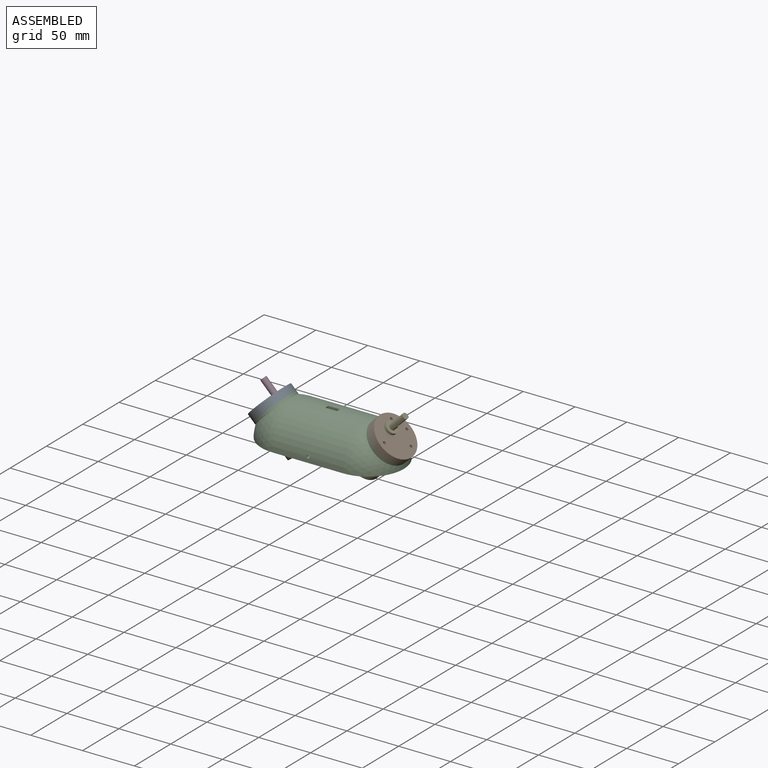
[diagram: assembled view]
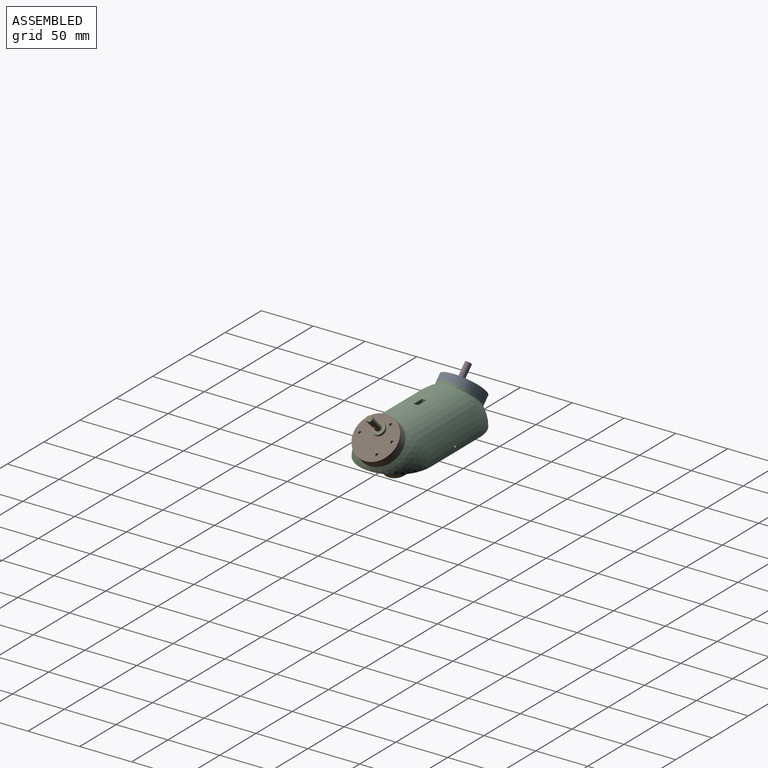
[diagram: assembled view, second angle]
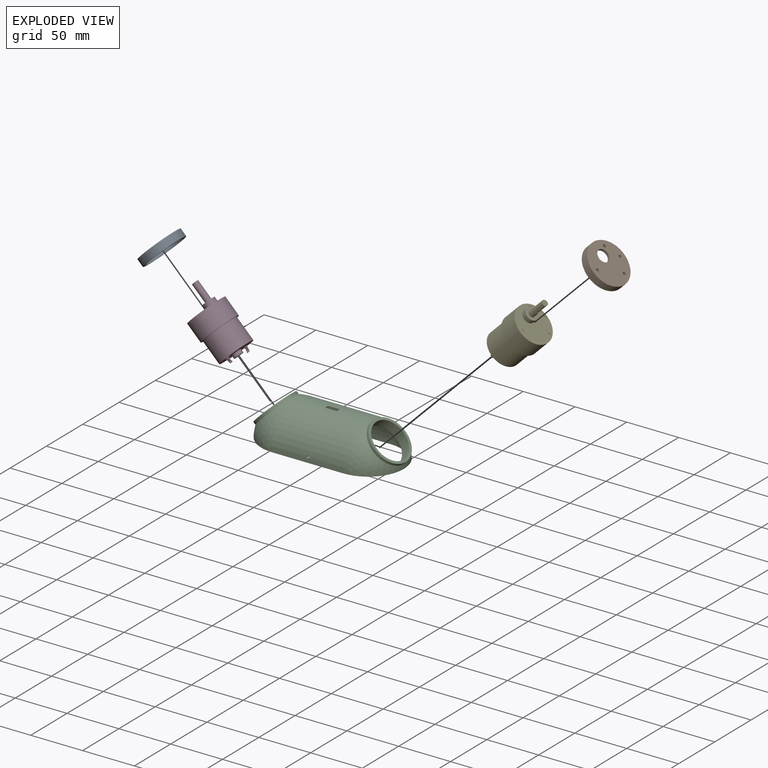
[diagram: exploded view]
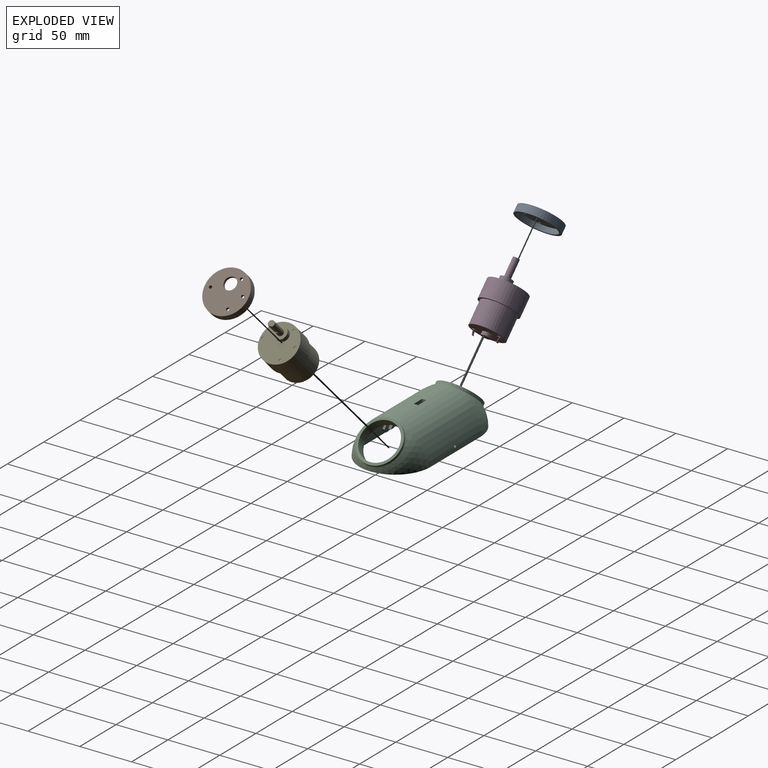
[diagram: exploded view, second angle]
ASSEMBLY  parts=5 mates=4
PART A: 10 faces, bbox 42.1x42.1x7.5 mm
  f0: plane 37.05x37.05mm, normal (0,0,-1), area 938.1mm2, adj f1,f2,f3,f4,f5,f8
  f1: cylinder r=6mm len=12mm, axis (0,0,-1), area 94.2mm2, adj f0,f7
  f2: cylinder r=1.46mm len=2.93mm, axis (0,0,-1), area 23mm2, adj f0,f7
  f3: cylinder r=1.46mm len=2.93mm, axis (0,0,-1), area 23mm2, adj f0,f7
  f4: cylinder r=1.46mm len=2.93mm, axis (0,0,-1), area 23mm2, adj f0,f7
  f5: cylinder r=1.46mm len=2.93mm, axis (0,0,-1), area 23mm2, adj f0,f7
  f6: cylinder r=21.02mm len=42.05mm, axis (0,0,-1), area 990.8mm2, adj f7,f9
  f7: plane 42.05x42.05mm, normal (0,0,1), area 1248.8mm2, adj f1,f2,f3,f4,f5,f6
  f8: cylinder r=18.52mm len=37.05mm, axis (0,0,1), area 582mm2, adj f0,f9
  f9: plane 42.05x42.05mm, normal (0,0,-1), area 310.6mm2, adj f6,f8
PART B: same geometry as A
PART C: 49 faces, bbox 140.9x68.7x36.8 mm
  f0: plane 3.13x2.8mm, normal (0.87,0,-0.5), area 9.6mm2, adj f3,f4,f12,f47
  f1: plane 6.42x3.7mm, normal (-0.87,0,0.5), area 12.7mm2, adj f2,f5,f12,f47
  f2: plane 3.13x2.8mm, normal (-0.87,0,-0.5), area 9.6mm2, adj f1,f6,f12,f47
  f3: plane 6.42x3.7mm, normal (0.87,0,0.5), area 12.7mm2, adj f0,f5,f12,f47
  f4: plane 3.29x2.8mm, normal (0,0,-1), area 9.2mm2, adj f0,f8,f12,f47
  f5: plane 6.39x0.74mm, normal (0,0,1), area 4.7mm2, adj f1,f3,f12,f47
  f6: plane 3.29x2.8mm, normal (0,0,-1), area 9.2mm2, adj f2,f7,f12,f47
  f7: plane 3.13x2.8mm, normal (0.87,0,0.5), area 9.6mm2, adj f6,f10,f12,f47
  f8: plane 3.13x2.8mm, normal (-0.87,0,0.5), area 9.6mm2, adj f4,f9,f12,f47
  f9: plane 3.13x2.47mm, normal (-0.87,0,-0.5), area 7.8mm2, adj f8,f11,f12,f47
  f10: plane 3.13x2.47mm, normal (0.87,0,-0.5), area 7.8mm2, adj f7,f11,f12,f47
  f11: plane 3.61x1.8mm, normal (0,0,-1), area 6.5mm2, adj f9,f10,f12,f47
  f12: cylinder r=31.85mm len=68.71mm, axis (-1,0,0), area 6677.1mm2, adj f0,f1,f2,f3,f4,f5,f6,f7
  f13: sphere r=34.35mm, area 2157.3mm2, adj f16,f17,f22
  f14: sphere r=31.85mm, area 1603.4mm2, adj f12,f17,f20
  f15: sphere r=34.35mm, area 2158mm2, adj f16,f17,f27
  f16: cylinder r=34.35mm len=68.71mm, axis (-1,0,0), area 7357.4mm2, adj f13,f15,f17,f29,f30,f31,f32,f33
  f17: plane 137.42x68.71mm, normal (0,0,-1), area 863.5mm2, adj f12,f13,f14,f15,f16,f18
  f18: sphere r=31.85mm, area 1605.1mm2, adj f12,f17,f25
  f19: plane 42.05x29.73mm, normal (-0.71,0,-0.71), area 310.6mm2, adj f20,f21
  f20: cylinder r=21.02mm len=42.05mm, axis (-0.71,0,-0.71), area 519.1mm2, adj f14,f19
  f21: cylinder r=18.52mm len=37.05mm, axis (-0.71,0,-0.71), area 1164mm2, adj f19,f23
  f22: cylinder r=21.02mm len=42.05mm, axis (-0.71,0,-0.71), area 374mm2, adj f13,f23
  f23: plane 42.05x29.73mm, normal (0.71,0,0.71), area 310.6mm2, adj f21,f22
  f24: plane 42.05x29.73mm, normal (0.71,0,-0.71), area 310.6mm2, adj f25,f26
  f25: cylinder r=21.02mm len=42.05mm, axis (0.71,0,-0.71), area 519.1mm2, adj f18,f24
  f26: cylinder r=18.52mm len=37.05mm, axis (0.71,0,-0.71), area 1164mm2, adj f24,f28
  f27: cylinder r=21.02mm len=42.05mm, axis (0.71,0,-0.71), area 374mm2, adj f15,f28
  f28: plane 42.05x29.73mm, normal (-0.71,0,0.71), area 310.6mm2, adj f26,f27
  f29: plane 4.07x2.57mm, normal (-1,0,0), area 10.2mm2, adj f12,f16,f30,f32
  f30: plane 11.43x2.5mm, normal (0,-1,0), area 28.6mm2, adj f12,f16,f29,f31
  f31: plane 4.07x2.57mm, normal (1,0,0), area 10.2mm2, adj f12,f16,f30,f32
  f32: plane 11.43x2.5mm, normal (0,1,0), area 28.6mm2, adj f12,f16,f29,f31
  f33: cylinder r=1.35mm len=2.95mm, axis (0,1,0), area 21.5mm2, adj f12,f16
  f34: cylinder r=1.35mm len=2.95mm, axis (0,1,0), area 21.5mm2, adj f12,f16
  f35: plane 3.13x2.8mm, normal (0.87,0,-0.5), area 9.6mm2, adj f12,f42,f43,f48
  f36: plane 6.42x3.7mm, normal (-0.87,0,0.5), area 12.7mm2, adj f12,f41,f44,f48
  f37: plane 3.13x2.8mm, normal (0.87,0,0.5), area 9.6mm2, adj f12,f40,f45,f48
  f38: plane 3.13x2.8mm, normal (-0.87,0,0.5), area 9.6mm2, adj f12,f39,f43,f48
  f39: plane 3.13x2.47mm, normal (-0.87,0,-0.5), area 7.8mm2, adj f12,f38,f46,f48
  f40: plane 3.13x2.47mm, normal (0.87,0,-0.5), area 7.8mm2, adj f12,f37,f46,f48
  f41: plane 3.13x2.8mm, normal (-0.87,0,-0.5), area 9.6mm2, adj f12,f36,f45,f48
  f42: plane 6.42x3.7mm, normal (0.87,0,0.5), area 12.7mm2, adj f12,f35,f44,f48
  f43: plane 3.29x2.8mm, normal (0,0,-1), area 9.2mm2, adj f12,f35,f38,f48
  f44: plane 6.39x0.74mm, normal (0,0,1), area 4.7mm2, adj f12,f36,f42,f48
  f45: plane 3.29x2.8mm, normal (0,0,-1), area 9.2mm2, adj f12,f37,f41,f48
  f46: plane 3.61x1.8mm, normal (0,0,-1), area 6.5mm2, adj f12,f39,f40,f48
  f47: plane 13.8x9.54mm, normal (0,-1,0), area 68.4mm2, adj f0,f1,f2,f3,f4,f5,f6,f7
  f48: plane 13.8x9.54mm, normal (0,1,0), area 68.4mm2, adj f35,f36,f37,f38,f39,f40,f41,f42
PART D: 37 faces, bbox 68.8x37x37 mm
  f0: plane 4.73x4.73mm, normal (-1,0,0), area 16.1mm2, adj f4,f17,f19,f20,f21
  f1: cylinder r=16.5mm len=33mm, axis (-1,0,0), area 2338.9mm2, adj f7,f9
  f2: cylinder r=4.53mm len=9.05mm, axis (1,0,0), area 95mm2, adj f3,f7
  f3: plane 9.05x9.05mm, normal (-1,0,0), area 64.3mm2, adj f2
  f4: cylinder r=2.36mm len=4.73mm, axis (1,0,0), area 7.4mm2, adj f0,f7
  f5: cylinder r=2.36mm len=4.73mm, axis (1,0,0), area 7.4mm2, adj f6,f7
  f6: plane 4.73x4.73mm, normal (-1,0,0), area 16.1mm2, adj f5,f22,f23,f25,f26
  f7: plane 33x33mm, normal (-1,0,0), area 755.8mm2, adj f1,f2,f4,f5
  f8: cylinder r=18.5mm len=37mm, axis (-1,0,0), area 2143.4mm2, adj f9,f10
  f9: plane 37x37mm, normal (-1,0,0), area 219.9mm2, adj f1,f8
  f10: plane 37x37mm, normal (1,0,0), area 935.2mm2, adj f8,f11,f29,f31,f33,f35
  f11: cylinder r=6mm len=12mm, axis (-1,0,0), area 169.6mm2, adj f10,f12
  f12: plane 12x12mm, normal (1,0,0), area 84.8mm2, adj f11,f13
  f13: cylinder r=3mm len=18.3mm, axis (-1,0,0), area 296mm2, adj f12,f14,f15,f16
  f14: plane 6x5.33mm, normal (1,0,0), area 26.6mm2, adj f13,f15
  f15: plane 12x3.77mm, normal (0,0,1), area 45.2mm2, adj f13,f14,f16
  f16: plane 3.77x0.67mm, normal (1,0,0), area 1.7mm2, adj f13,f15
  f17: cylinder r=12.45mm len=4.5mm, axis (0,0,-1), area 12.5mm2, adj f0,f18,f20,f21,f28
  f18: plane 2.87x0.5mm, normal (-1,0,0), area 1.4mm2, adj f17,f19,f20,f21
  f19: cylinder r=12.45mm len=4.5mm, axis (0,0,-1), area 12.5mm2, adj f0,f18,f20,f21,f28
  f20: plane 4.5x1.54mm, normal (0,0,1), area 2.2mm2, adj f0,f17,f18,f19
  f21: plane 4.5x1.54mm, normal (0,0,-1), area 2.2mm2, adj f0,f17,f18,f19
  f22: cylinder r=12.45mm len=4.5mm, axis (0,0,-1), area 12.5mm2, adj f6,f24,f25,f26,f27
  f23: cylinder r=12.45mm len=4.5mm, axis (0,0,-1), area 12.5mm2, adj f6,f24,f25,f26,f27
  f24: plane 2.87x0.5mm, normal (-1,0,0), area 1.4mm2, adj f22,f23,f25,f26
  f25: plane 4.5x1.54mm, normal (0,0,1), area 2.2mm2, adj f6,f22,f23,f24
  f26: plane 4.5x1.54mm, normal (0,0,-1), area 2.2mm2, adj f6,f22,f23,f24
  f27: extruded ~1.29x0.75mm, area 1.6mm2, adj f22,f23
  f28: extruded ~1.29x0.75mm, area 1.6mm2, adj f17,f19
  f29: cylinder r=1.46mm len=2.93mm, axis (1,0,0), area 4.6mm2, adj f10,f30
  f30: plane 2.93x2.93mm, normal (1,0,0), area 6.7mm2, adj f29
  f31: cylinder r=1.46mm len=2.93mm, axis (1,0,0), area 4.6mm2, adj f10,f32
  f32: plane 2.93x2.93mm, normal (1,0,0), area 6.7mm2, adj f31
  f33: cylinder r=1.46mm len=2.93mm, axis (1,0,0), area 4.6mm2, adj f10,f34
  f34: plane 2.93x2.93mm, normal (1,0,0), area 6.7mm2, adj f33
  f35: cylinder r=1.46mm len=2.93mm, axis (1,0,0), area 4.6mm2, adj f10,f36
  f36: plane 2.93x2.93mm, normal (1,0,0), area 6.7mm2, adj f35
PART E: same geometry as D
PLACE A rot(axis=(-0.36,-0.36,0.86),98.4deg) t=(-84.25,-19.39,-0.99)mm
PLACE B rot(axis=(-0.36,0.36,-0.86),98.4deg) t=(33.95,-19.39,-0.99)mm
PLACE C t=(-25.15,-19.39,-25.74)mm fixed
PLACE D rot(axis=(0,-1,0),135deg) t=(-52.08,-19.39,-33.16)mm
PLACE E rot(axis=(0.92,0,0.38),180deg) t=(5.32,-19.39,-29.63)mm
MATE fastened C.f20 <-> B.f6  axis (0.71,0,0.71) through (30.42,-19.39,-4.52)mm
MATE fastened A.f6 <-> C.f25  axis (-0.71,0,0.71) through (-80.72,-19.39,-4.52)mm
MATE slider D.f11 <-> A.f1  axis (-0.71,0,0.71) through (-79.02,-19.39,4.25)mm
MATE slider B.f1 <-> E.f11  axis (0.71,0,0.71) through (30.49,-19.39,6.01)mm
